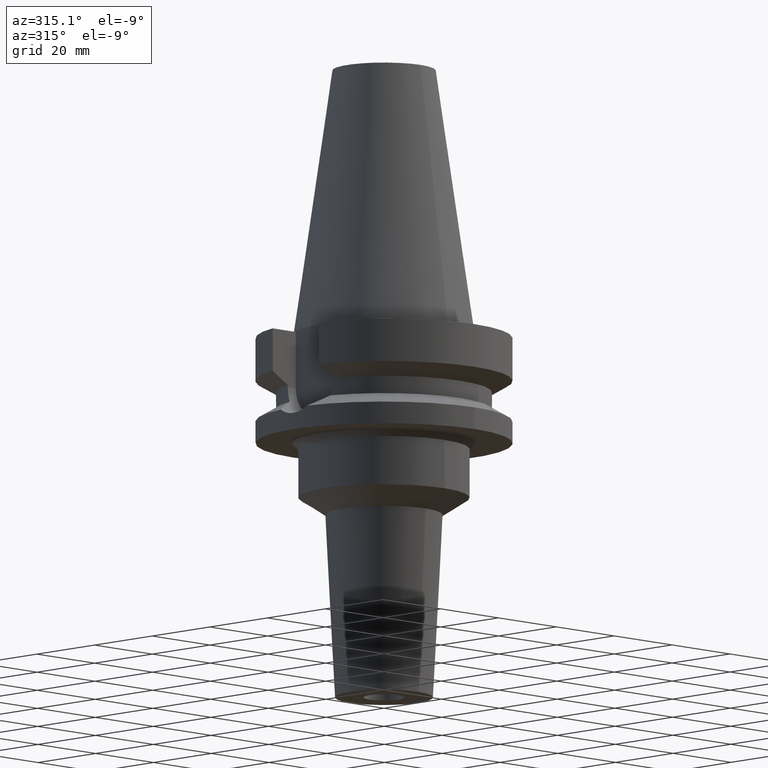
[diagram: clean part render]
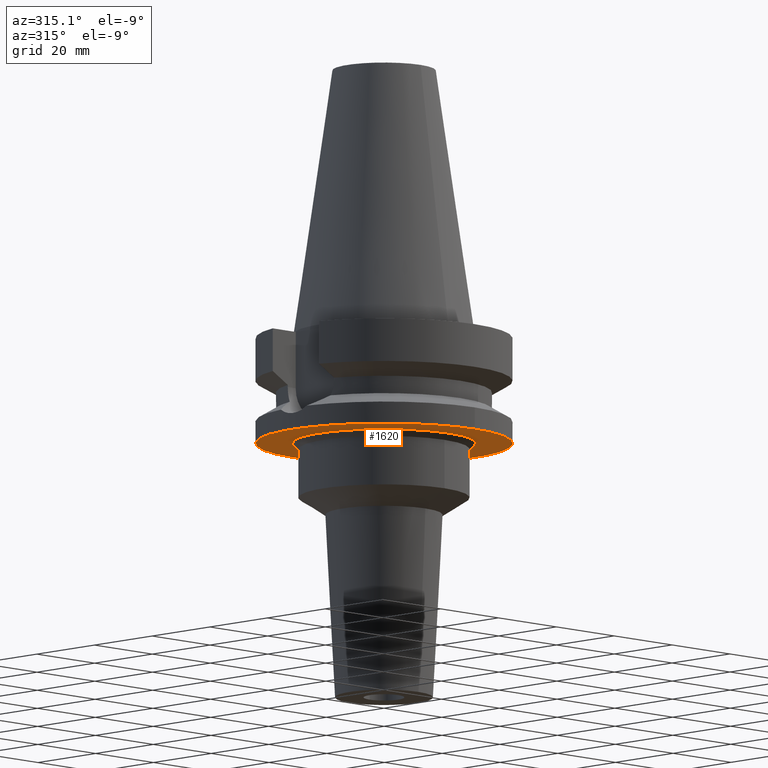
[diagram: same view with one face highlighted and labeled with its STEP entity id]
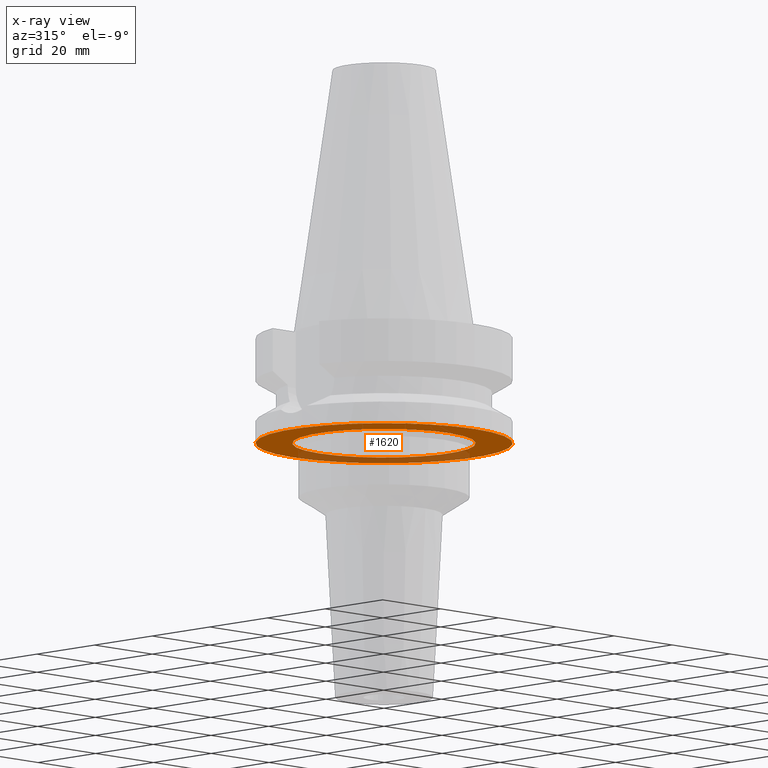
[diagram: x-ray of the same camera — body ghosted, the highlighted face saturated]
A machine part, auxiliary view. The second image highlights one B-rep face of the part: STEP entity #1620.
The next image is the same camera in x-ray: the body ghosted, the highlighted face saturated — about 28% of this face is hidden behind the body in this view.
In plain terms, the highlighted planar face has unit normal (0, 0, -1).
Its self-contained STEP definition (entity closure, byte-faithful):
#629=CARTESIAN_POINT('',(0.E0,2.120720862083E-14,-2.7E1));
#630=DIRECTION('',(0.E0,0.E0,1.E0));
#631=DIRECTION('',(0.E0,-1.E0,0.E0));
#632=AXIS2_PLACEMENT_3D('',#629,#630,#631);
#637=CARTESIAN_POINT('',(0.E0,2.120720862083E-14,-2.7E1));
#638=DIRECTION('',(0.E0,0.E0,1.E0));
#639=DIRECTION('',(0.E0,1.E0,0.E0));
#640=AXIS2_PLACEMENT_3D('',#637,#638,#639);
#645=CARTESIAN_POINT('',(0.E0,0.E0,-2.7E1));
#646=DIRECTION('',(0.E0,0.E0,-1.E0));
#647=DIRECTION('',(0.E0,-1.E0,0.E0));
#648=AXIS2_PLACEMENT_3D('',#645,#646,#647);
#653=CARTESIAN_POINT('',(0.E0,0.E0,-2.7E1));
#654=DIRECTION('',(0.E0,0.E0,-1.E0));
#655=DIRECTION('',(0.E0,1.E0,0.E0));
#656=AXIS2_PLACEMENT_3D('',#653,#654,#655);
#1089=CARTESIAN_POINT('',(0.E0,2.25E1,-2.7E1));
#1090=VERTEX_POINT('',#1089);
#1091=CARTESIAN_POINT('',(0.E0,-2.25E1,-2.7E1));
#1092=VERTEX_POINT('',#1091);
#1093=CARTESIAN_POINT('',(0.E0,-3.15E1,-2.7E1));
#1094=CARTESIAN_POINT('',(0.E0,3.15E1,-2.7E1));
#1095=VERTEX_POINT('',#1093);
#1096=VERTEX_POINT('',#1094);
#1605=CARTESIAN_POINT('',(0.E0,0.E0,-2.7E1));
#1606=DIRECTION('',(0.E0,0.E0,-1.E0));
#1607=DIRECTION('',(0.E0,-1.E0,0.E0));
#1608=AXIS2_PLACEMENT_3D('',#1605,#1606,#1607);
#1609=PLANE('',#1608);
#1610=ORIENTED_EDGE('',*,*,#1567,.T.);
#1611=ORIENTED_EDGE('',*,*,#1598,.T.);
#1612=EDGE_LOOP('',(#1610,#1611));
#1613=FACE_OUTER_BOUND('',#1612,.F.);
#1615=ORIENTED_EDGE('',*,*,#1614,.T.);
#1617=ORIENTED_EDGE('',*,*,#1616,.T.);
#1618=EDGE_LOOP('',(#1615,#1617));
#1619=FACE_BOUND('',#1618,.F.);
#633=CIRCLE('',#632,3.15E1);
#641=CIRCLE('',#640,3.15E1);
#649=CIRCLE('',#648,2.25E1);
#657=CIRCLE('',#656,2.25E1);
#1567=EDGE_CURVE('',#1095,#1096,#633,.T.);
#1598=EDGE_CURVE('',#1096,#1095,#641,.T.);
#1614=EDGE_CURVE('',#1092,#1090,#649,.T.);
#1616=EDGE_CURVE('',#1090,#1092,#657,.T.);
#1620=ADVANCED_FACE('',(#1613,#1619),#1609,.T.);